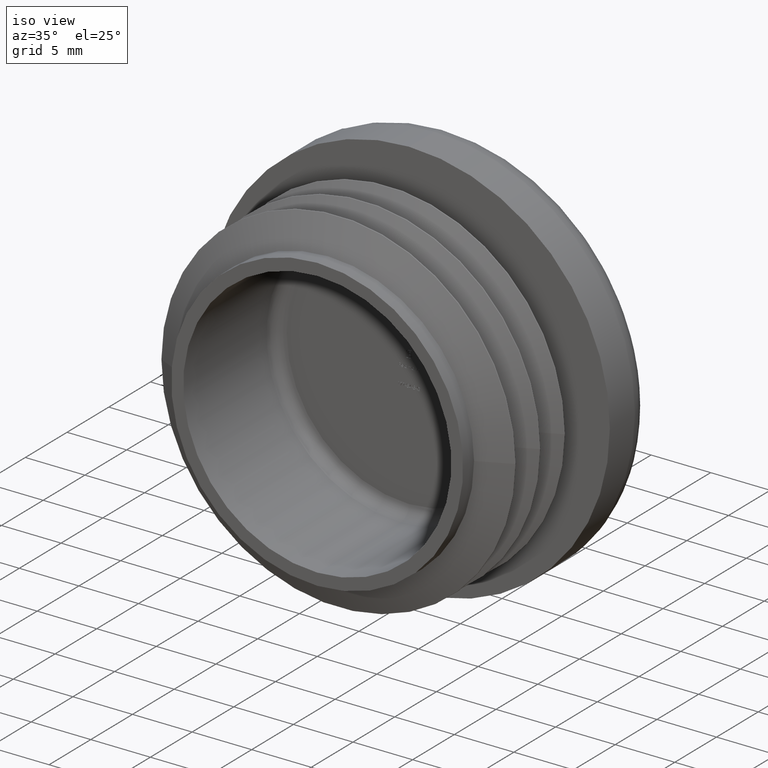
[diagram: clean part render]
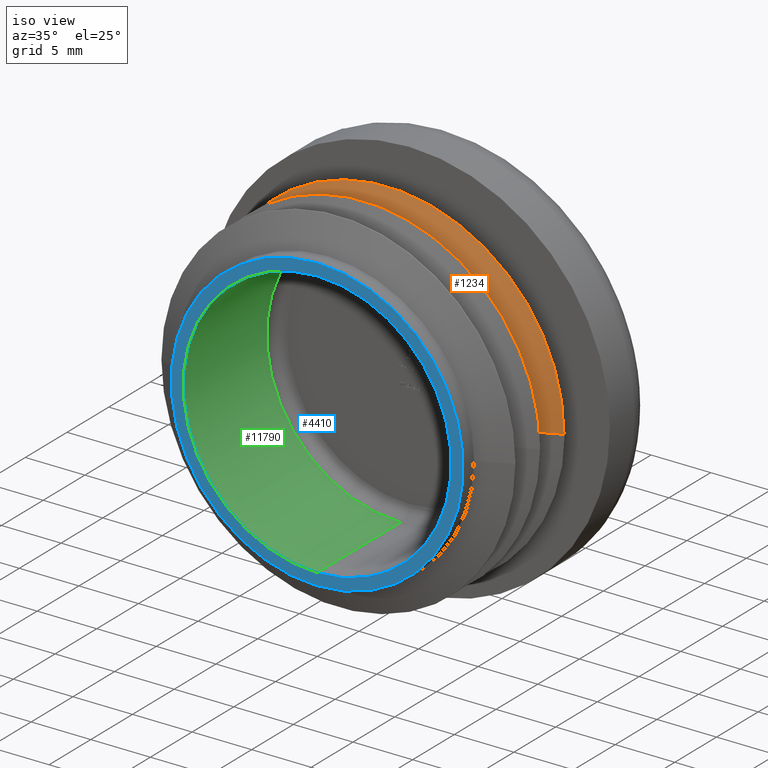
[diagram: same view with three faces highlighted in distinct colors, each labeled with its STEP entity id]
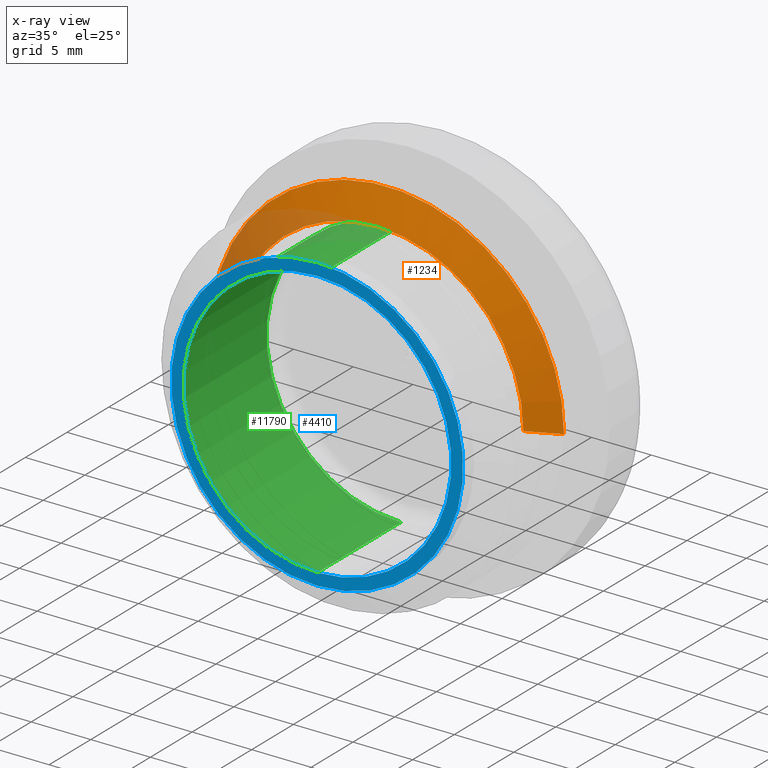
[diagram: x-ray of the same camera — body ghosted, the three highlighted faces saturated]
A machine part, iso view with three faces highlighted in distinct colors.
The next image is the same camera in x-ray (body ghosted, the three faces saturated) — at least one of them is partly hidden behind the body in this view.
Their STEP definitions:

[orange] entity #1234 — the highlighted conical surface has half-angle 64.895 deg.
#242 = DIRECTION ( 'NONE',  ( -1.000000000000000000, -1.047914589569656718E-14, 0.000000000000000000 ) ) ;
#277 = EDGE_CURVE ( 'NONE', #1844, #9803, #4292, .T. ) ;
#329 = DIRECTION ( 'NONE',  ( 1.047444401652940164E-14, -1.000000000000000000, -0.000000000000000000 ) ) ;
#837 = DIRECTION ( 'NONE',  ( -1.000000000000000000, -1.047914589569663029E-14, 0.000000000000000000 ) ) ;
#1173 = EDGE_CURVE ( 'NONE', #9803, #13586, #5939, .T. ) ;
#1234 = ADVANCED_FACE ( 'NONE', ( #8930 ), #2742, .T. ) ;
#1288 = AXIS2_PLACEMENT_3D ( 'NONE', #2331, #5545, #9773 ) ;
#1460 = VECTOR ( 'NONE', #4509, 1000.000000000000000 ) ;
#1844 = VERTEX_POINT ( 'NONE', #2828 ) ;
#2035 = EDGE_CURVE ( 'NONE', #3629, #1844, #4765, .T. ) ;
#2207 = VECTOR ( 'NONE', #6930, 1000.000000000000000 ) ;
#2331 = CARTESIAN_POINT ( 'NONE',  ( -7.541599691901318247E-14, 7.200000000000143174, 0.000000000000000000 ) ) ;
#2668 = VERTEX_POINT ( 'NONE', #4845 ) ;
#2742 = CONICAL_SURFACE ( 'NONE', #7537, 12.25000000000007461, 1.132629769229690941 ) ;
#2828 = CARTESIAN_POINT ( 'NONE',  ( 12.24999999999992539, 7.200000000000271072, 1.657633778522968580E-15 ) ) ;
#3157 = EDGE_CURVE ( 'NONE', #2668, #3629, #10243, .T. ) ;
#3391 = CARTESIAN_POINT ( 'NONE',  ( -14.82121399700032782, 8.404723446119705343, 0.000000000000000000 ) ) ;
#3629 = VERTEX_POINT ( 'NONE', #7557 ) ;
#4175 = DIRECTION ( 'NONE',  ( -1.047444401652940164E-14, 1.000000000000000000, 0.000000000000000000 ) ) ;
#4292 = LINE ( 'NONE', #11912, #1460 ) ;
#4509 = DIRECTION ( 'NONE',  ( 0.9055310776063628664, 0.4242799400031296853, 1.108955735719091243E-16 ) ) ;
#4765 = CIRCLE ( 'NONE', #1288, 12.25000000000000000 ) ;
#4845 = CARTESIAN_POINT ( 'NONE',  ( -12.25000000000007461, 7.200000000000014388, 0.000000000000000000 ) ) ;
#5124 = CARTESIAN_POINT ( 'NONE',  ( 14.82121399700015374, 8.404723446120014430, 1.815075228090429229E-15 ) ) ;
#5184 = ORIENTED_EDGE ( 'NONE', *, *, #3157, .T. ) ;
#5545 = DIRECTION ( 'NONE',  ( -1.047444401652940164E-14, 1.000000000000000000, 0.000000000000000000 ) ) ;
#5814 = EDGE_LOOP ( 'NONE', ( #8229, #9538, #12014, #12808, #5184 ) ) ;
#5939 = CIRCLE ( 'NONE', #11558, 14.82121399700024078 ) ;
#6930 = DIRECTION ( 'NONE',  ( -0.9055310776063717482, 0.4242799400031107004, 0.000000000000000000 ) ) ;
#7135 = EDGE_CURVE ( 'NONE', #2668, #13586, #12203, .T. ) ;
#7537 = AXIS2_PLACEMENT_3D ( 'NONE', #9800, #10974, #242 ) ;
#7557 = CARTESIAN_POINT ( 'NONE',  ( 1.500192328954163910E-15, 7.200000000000143174, 12.25000000000000000 ) ) ;
#7803 = DIRECTION ( 'NONE',  ( 1.000000000000000000, 1.041685177699909593E-14, 0.000000000000000000 ) ) ;
#8229 = ORIENTED_EDGE ( 'NONE', *, *, #2035, .T. ) ;
#8930 = FACE_OUTER_BOUND ( 'NONE', #5814, .T. ) ;
#9538 = ORIENTED_EDGE ( 'NONE', *, *, #277, .T. ) ;
#9773 = DIRECTION ( 'NONE',  ( -1.000000000000000000, -1.047914589569663029E-14, 0.000000000000000000 ) ) ;
#9800 = CARTESIAN_POINT ( 'NONE',  ( -7.541599691901354850E-14, 7.200000000000177813, 0.000000000000000000 ) ) ;
#9803 = VERTEX_POINT ( 'NONE', #5124 ) ;
#10243 = CIRCLE ( 'NONE', #11744, 12.25000000000000000 ) ;
#10974 = DIRECTION ( 'NONE',  ( -1.047444401652940164E-14, 1.000000000000000000, 0.000000000000000000 ) ) ;
#11009 = CARTESIAN_POINT ( 'NONE',  ( -7.541599691901318247E-14, 7.200000000000143174, 0.000000000000000000 ) ) ;
#11558 = AXIS2_PLACEMENT_3D ( 'NONE', #12044, #329, #7803 ) ;
#11744 = AXIS2_PLACEMENT_3D ( 'NONE', #11009, #4175, #837 ) ;
#11912 = CARTESIAN_POINT ( 'NONE',  ( 12.25000000000000000, 7.200000000000305711, 1.500192328955516806E-15 ) ) ;
#12014 = ORIENTED_EDGE ( 'NONE', *, *, #1173, .T. ) ;
#12044 = CARTESIAN_POINT ( 'NONE',  ( -8.803480521079455577E-14, 8.404723446119861663, 0.000000000000000000 ) ) ;
#12203 = LINE ( 'NONE', #13299, #2207 ) ;
#12808 = ORIENTED_EDGE ( 'NONE', *, *, #7135, .F. ) ;
#13299 = CARTESIAN_POINT ( 'NONE',  ( -12.25000000000014921, 7.200000000000049027, 0.000000000000000000 ) ) ;
#13586 = VERTEX_POINT ( 'NONE', #3391 ) ;

[blue] entity #4410 — the highlighted planar face has unit normal (0, -1, -0).
#193 = CARTESIAN_POINT ( 'NONE',  ( 0.000000000000000000, 0.000000000000000000, -12.25000000000000000 ) ) ;
#265 = AXIS2_PLACEMENT_3D ( 'NONE', #6796, #13211, #9912 ) ;
#545 = EDGE_LOOP ( 'NONE', ( #11801, #4526 ) ) ;
#601 = EDGE_CURVE ( 'NONE', #2614, #6975, #2597, .T. ) ;
#852 = ORIENTED_EDGE ( 'NONE', *, *, #601, .T. ) ;
#1055 = FACE_OUTER_BOUND ( 'NONE', #12297, .T. ) ;
#1469 = DIRECTION ( 'NONE',  ( 0.000000000000000000, 0.000000000000000000, -1.000000000000000000 ) ) ;
#1894 = EDGE_CURVE ( 'NONE', #8194, #12805, #12589, .T. ) ;
#2479 = DIRECTION ( 'NONE',  ( 0.000000000000000000, -1.000000000000000000, -0.000000000000000000 ) ) ;
#2597 = CIRCLE ( 'NONE', #4595, 12.25000000000000000 ) ;
#2614 = VERTEX_POINT ( 'NONE', #3740 ) ;
#2783 = DIRECTION ( 'NONE',  ( -0.000000000000000000, -1.000000000000000000, -0.000000000000000000 ) ) ;
#3701 = CIRCLE ( 'NONE', #11052, 12.25000000000000000 ) ;
#3740 = CARTESIAN_POINT ( 'NONE',  ( 1.500192328955507734E-15, 0.000000000000000000, 12.25000000000000000 ) ) ;
#4313 = DIRECTION ( 'NONE',  ( -0.000000000000000000, -1.000000000000000000, -0.000000000000000000 ) ) ;
#4410 = ADVANCED_FACE ( 'NONE', ( #1055, #7066 ), #5843, .T. ) ;
#4526 = ORIENTED_EDGE ( 'NONE', *, *, #9712, .F. ) ;
#4595 = AXIS2_PLACEMENT_3D ( 'NONE', #11675, #4313, #6316 ) ;
#4954 = DIRECTION ( 'NONE',  ( 0.000000000000000000, 0.000000000000000000, -1.000000000000000000 ) ) ;
#5671 = AXIS2_PLACEMENT_3D ( 'NONE', #8024, #2479, #1469 ) ;
#5843 = PLANE ( 'NONE',  #5671 ) ;
#5844 = AXIS2_PLACEMENT_3D ( 'NONE', #6163, #2783, #4954 ) ;
#6163 = CARTESIAN_POINT ( 'NONE',  ( 0.000000000000000000, 0.000000000000000000, 0.000000000000000000 ) ) ;
#6316 = DIRECTION ( 'NONE',  ( 0.000000000000000000, 0.000000000000000000, -1.000000000000000000 ) ) ;
#6591 = EDGE_CURVE ( 'NONE', #6975, #2614, #3701, .T. ) ;
#6796 = CARTESIAN_POINT ( 'NONE',  ( 0.000000000000000000, 0.000000000000000000, 0.000000000000000000 ) ) ;
#6975 = VERTEX_POINT ( 'NONE', #193 ) ;
#7066 = FACE_BOUND ( 'NONE', #545, .T. ) ;
#7397 = DIRECTION ( 'NONE',  ( 0.000000000000000000, 0.000000000000000000, -1.000000000000000000 ) ) ;
#8024 = CARTESIAN_POINT ( 'NONE',  ( 12.25000000000000000, -1.530808498934191571E-16, 0.000000000000000000 ) ) ;
#8194 = VERTEX_POINT ( 'NONE', #10227 ) ;
#9399 = CARTESIAN_POINT ( 'NONE',  ( 1.377727649040772389E-15, 0.000000000000000000, 11.25000000000000000 ) ) ;
#9712 = EDGE_CURVE ( 'NONE', #12805, #8194, #10781, .T. ) ;
#9912 = DIRECTION ( 'NONE',  ( 0.000000000000000000, 0.000000000000000000, -1.000000000000000000 ) ) ;
#10219 = ORIENTED_EDGE ( 'NONE', *, *, #6591, .T. ) ;
#10227 = CARTESIAN_POINT ( 'NONE',  ( 0.000000000000000000, 0.000000000000000000, -11.25000000000000000 ) ) ;
#10781 = CIRCLE ( 'NONE', #265, 11.25000000000000000 ) ;
#11052 = AXIS2_PLACEMENT_3D ( 'NONE', #12795, #13751, #7397 ) ;
#11675 = CARTESIAN_POINT ( 'NONE',  ( 0.000000000000000000, 0.000000000000000000, 0.000000000000000000 ) ) ;
#11801 = ORIENTED_EDGE ( 'NONE', *, *, #1894, .F. ) ;
#12297 = EDGE_LOOP ( 'NONE', ( #10219, #852 ) ) ;
#12589 = CIRCLE ( 'NONE', #5844, 11.25000000000000000 ) ;
#12795 = CARTESIAN_POINT ( 'NONE',  ( 0.000000000000000000, 0.000000000000000000, 0.000000000000000000 ) ) ;
#12805 = VERTEX_POINT ( 'NONE', #9399 ) ;
#13211 = DIRECTION ( 'NONE',  ( -0.000000000000000000, -1.000000000000000000, -0.000000000000000000 ) ) ;
#13751 = DIRECTION ( 'NONE',  ( -0.000000000000000000, -1.000000000000000000, -0.000000000000000000 ) ) ;

[green] entity #11790 — the highlighted cylindrical surface (partial cylindrical patch) has radius 11.25 mm, axis along (-0, -1, -0).
#265 = AXIS2_PLACEMENT_3D ( 'NONE', #6796, #13211, #9912 ) ;
#309 = DIRECTION ( 'NONE',  ( 0.000000000000000000, 0.000000000000000000, -1.000000000000000000 ) ) ;
#1262 = CARTESIAN_POINT ( 'NONE',  ( 1.377727649040772389E-15, 9.999999999999998224, 11.25000000000000000 ) ) ;
#1935 = VECTOR ( 'NONE', #3333, 1000.000000000000000 ) ;
#2053 = EDGE_CURVE ( 'NONE', #6995, #12805, #8914, .T. ) ;
#2291 = AXIS2_PLACEMENT_3D ( 'NONE', #3526, #2334, #309 ) ;
#2328 = CARTESIAN_POINT ( 'NONE',  ( 0.000000000000000000, 9.999999999999998224, -11.25000000000000000 ) ) ;
#2334 = DIRECTION ( 'NONE',  ( 0.000000000000000000, 1.000000000000000000, 0.000000000000000000 ) ) ;
#2989 = AXIS2_PLACEMENT_3D ( 'NONE', #4138, #9529, #7259 ) ;
#3333 = DIRECTION ( 'NONE',  ( -0.000000000000000000, -1.000000000000000000, -0.000000000000000000 ) ) ;
#3526 = CARTESIAN_POINT ( 'NONE',  ( 0.000000000000000000, 9.999999999999998224, 0.000000000000000000 ) ) ;
#4138 = CARTESIAN_POINT ( 'NONE',  ( 0.000000000000000000, 11.00000000000000000, 0.000000000000000000 ) ) ;
#4218 = EDGE_CURVE ( 'NONE', #6981, #6995, #7553, .T. ) ;
#5446 = DIRECTION ( 'NONE',  ( -0.000000000000000000, -1.000000000000000000, -0.000000000000000000 ) ) ;
#6243 = CYLINDRICAL_SURFACE ( 'NONE', #2989, 11.25000000000000000 ) ;
#6313 = EDGE_CURVE ( 'NONE', #6981, #8194, #10038, .T. ) ;
#6796 = CARTESIAN_POINT ( 'NONE',  ( 0.000000000000000000, 0.000000000000000000, 0.000000000000000000 ) ) ;
#6981 = VERTEX_POINT ( 'NONE', #2328 ) ;
#6995 = VERTEX_POINT ( 'NONE', #1262 ) ;
#7259 = DIRECTION ( 'NONE',  ( 0.000000000000000000, 0.000000000000000000, -1.000000000000000000 ) ) ;
#7553 = CIRCLE ( 'NONE', #2291, 11.25000000000000000 ) ;
#7908 = ORIENTED_EDGE ( 'NONE', *, *, #9712, .T. ) ;
#8194 = VERTEX_POINT ( 'NONE', #10227 ) ;
#8293 = ORIENTED_EDGE ( 'NONE', *, *, #6313, .F. ) ;
#8914 = LINE ( 'NONE', #10900, #1935 ) ;
#9399 = CARTESIAN_POINT ( 'NONE',  ( 1.377727649040772389E-15, 0.000000000000000000, 11.25000000000000000 ) ) ;
#9529 = DIRECTION ( 'NONE',  ( -0.000000000000000000, -1.000000000000000000, -0.000000000000000000 ) ) ;
#9712 = EDGE_CURVE ( 'NONE', #12805, #8194, #10781, .T. ) ;
#9912 = DIRECTION ( 'NONE',  ( 0.000000000000000000, 0.000000000000000000, -1.000000000000000000 ) ) ;
#10038 = LINE ( 'NONE', #12931, #13505 ) ;
#10227 = CARTESIAN_POINT ( 'NONE',  ( 0.000000000000000000, 0.000000000000000000, -11.25000000000000000 ) ) ;
#10781 = CIRCLE ( 'NONE', #265, 11.25000000000000000 ) ;
#10900 = CARTESIAN_POINT ( 'NONE',  ( 1.377727649040772389E-15, 11.00000000000000000, 11.25000000000000000 ) ) ;
#11334 = EDGE_LOOP ( 'NONE', ( #12980, #11661, #7908, #8293 ) ) ;
#11576 = FACE_OUTER_BOUND ( 'NONE', #11334, .T. ) ;
#11661 = ORIENTED_EDGE ( 'NONE', *, *, #2053, .T. ) ;
#11790 = ADVANCED_FACE ( 'NONE', ( #11576 ), #6243, .F. ) ;
#12805 = VERTEX_POINT ( 'NONE', #9399 ) ;
#12931 = CARTESIAN_POINT ( 'NONE',  ( 0.000000000000000000, 11.00000000000000000, -11.25000000000000000 ) ) ;
#12980 = ORIENTED_EDGE ( 'NONE', *, *, #4218, .T. ) ;
#13211 = DIRECTION ( 'NONE',  ( -0.000000000000000000, -1.000000000000000000, -0.000000000000000000 ) ) ;
#13505 = VECTOR ( 'NONE', #5446, 1000.000000000000000 ) ;